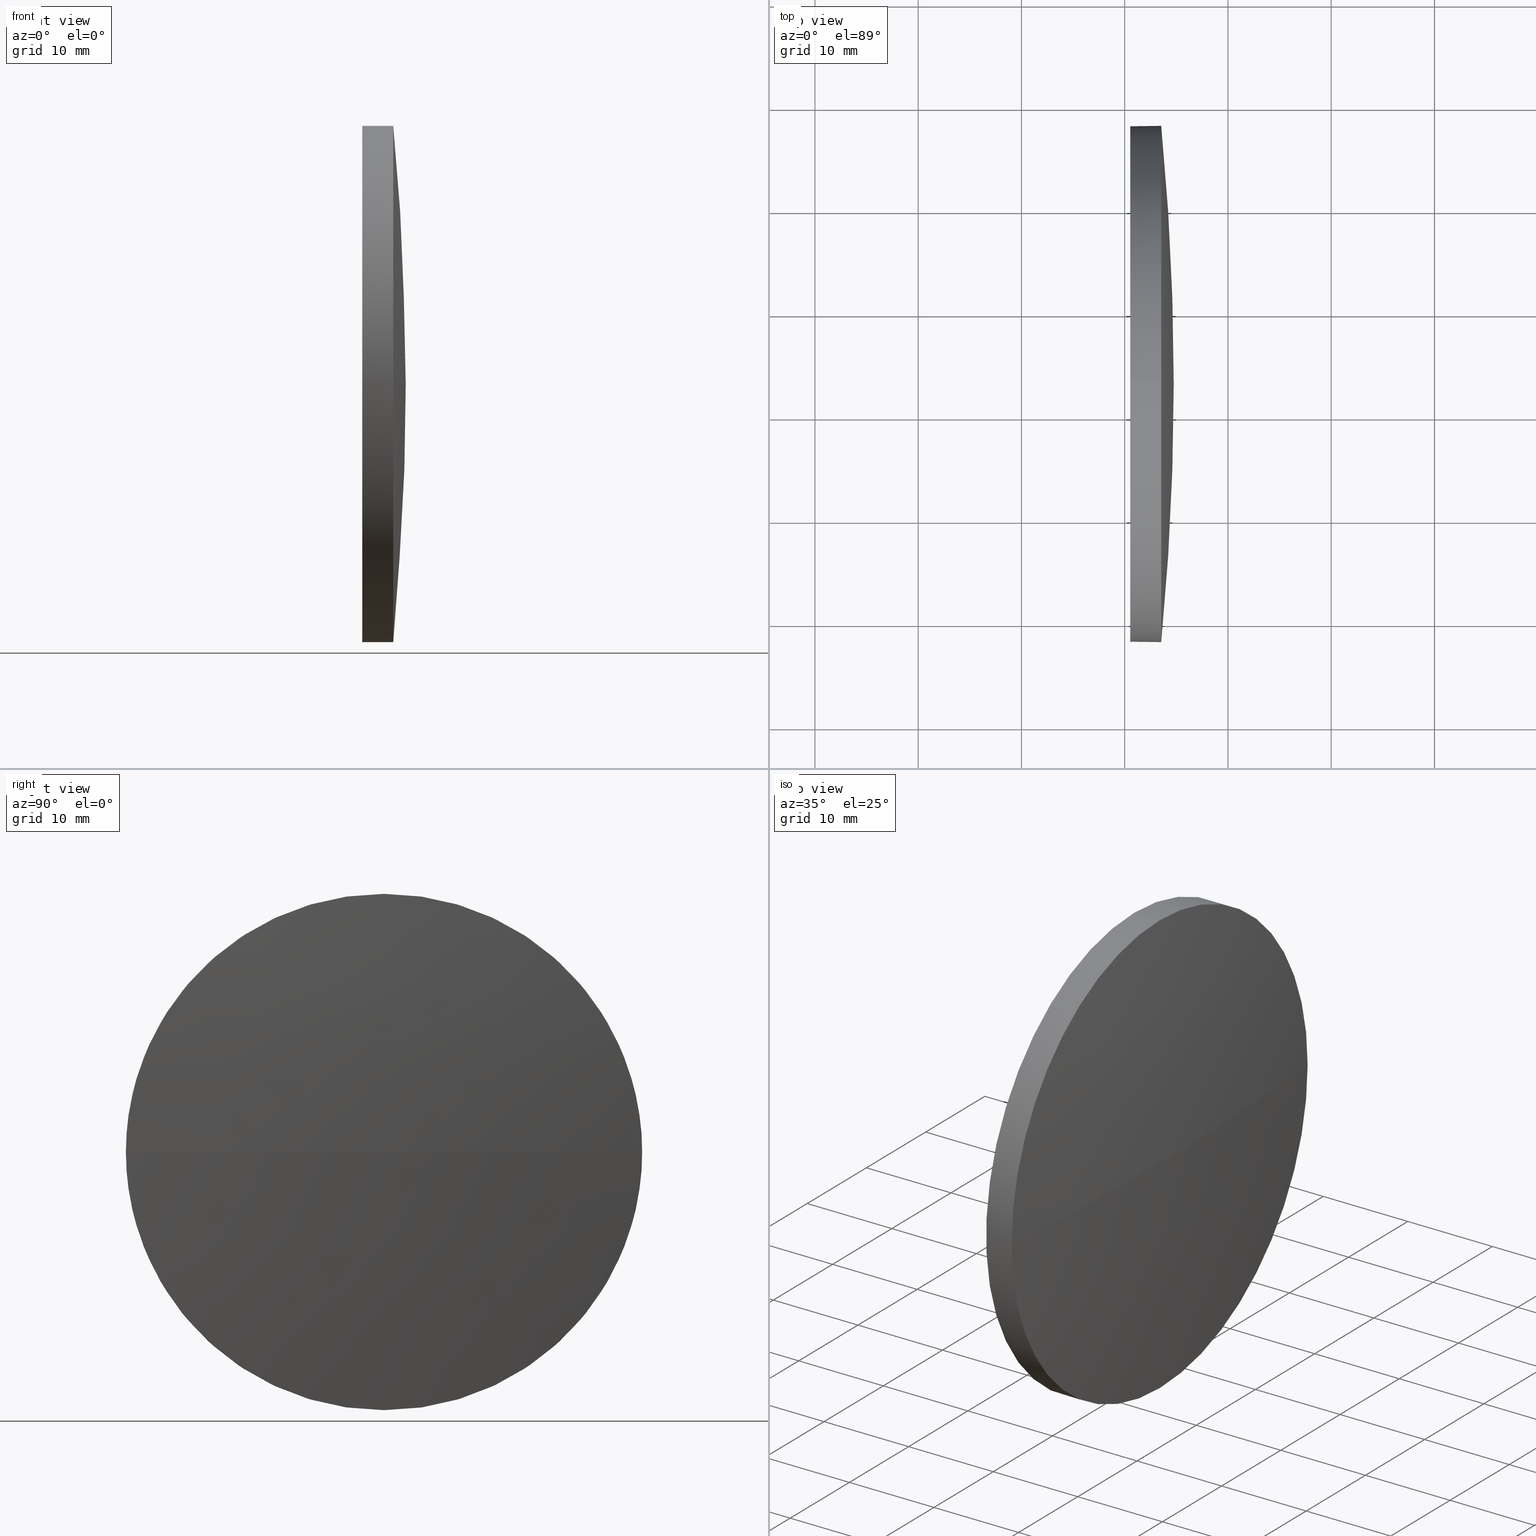
[diagram: canonical four-view strip — front | top / right | iso, engineering-drawing reading convention]
A machine part, canonical four-view strip (front | top / right | iso — engineering-drawing reading convention). The complete STEP part file that produces these views, byte-faithful:
ISO-10303-21;
HEADER;
FILE_DESCRIPTION (( 'STEP AP214' ),
    '1' );
FILE_NAME ('100071.STEP',
    '2019-05-06T03:19:26',
    ( '' ),
    ( '' ),
    'SwSTEP 2.0',
    'SolidWorks 2016',
    '' );
FILE_SCHEMA (( 'AUTOMOTIVE_DESIGN' ));
ENDSEC;

DATA;
#1 = PRESENTATION_STYLE_ASSIGNMENT (( #181 ) ) ;
#2 = VERTEX_POINT ( 'NONE', #138 ) ;
#3 = AXIS2_PLACEMENT_3D ( 'NONE', #9, #176, #63 ) ;
#4 = DIRECTION ( 'NONE',  ( -1.000000000000000000, -0.0000000000000000000, -0.0000000000000000000 ) ) ;
#5 = APPLICATION_CONTEXT ( 'automotive_design' ) ;
#6 = SURFACE_STYLE_FILL_AREA ( #7 ) ;
#7 = FILL_AREA_STYLE ('',( #129 ) ) ;
#8 = CARTESIAN_POINT ( 'NONE',  ( 195.8798775553282500, 83.03950815417367400, 0.0000000000000000000 ) ) ;
#9 = CARTESIAN_POINT ( 'NONE',  ( 453.5393403652467400, 83.03950815417408600, 0.0000000000000000000 ) ) ;
#10 = DIRECTION ( 'NONE',  ( -1.000000000000000000, -0.0000000000000000000, -0.0000000000000000000 ) ) ;
#11 = COLOUR_RGB ( '',1.000000000000000000, 1.000000000000000000, 1.000000000000000000 ) ;
#12 = CARTESIAN_POINT ( 'NONE',  ( 450.5393403652467400, 83.03950815417408600, 0.0000000000000000000 ) ) ;
#13 = DIRECTION ( 'NONE',  ( 0.0000000000000000000, 1.000000000000000000, 0.0000000000000000000 ) ) ;
#14 =( GEOMETRIC_REPRESENTATION_CONTEXT ( 3 ) GLOBAL_UNCERTAINTY_ASSIGNED_CONTEXT ( ( #65 ) ) GLOBAL_UNIT_ASSIGNED_CONTEXT ( ( #99, #69, #145 ) ) REPRESENTATION_CONTEXT ( 'NONE', 'WORKASPACE' ) );
#15 = SURFACE_STYLE_FILL_AREA ( #62 ) ;
#16 = AXIS2_PLACEMENT_3D ( 'NONE', #114, #58, #159 ) ;
#17 = EDGE_CURVE ( 'NONE', #137, #184, #162, .T. ) ;
#18 = ADVANCED_FACE ( 'NONE', ( #154 ), #75, .T. ) ;
#19 = PRODUCT_DEFINITION_CONTEXT ( 'detailed design', #5, 'design' ) ;
#20 = VECTOR ( 'NONE', #24, 1000.000000000000000 ) ;
#21 = VERTEX_POINT ( 'NONE', #29 ) ;
#22 = AXIS2_PLACEMENT_3D ( 'NONE', #47, #44, #68 ) ;
#23 = EDGE_LOOP ( 'NONE', ( #66, #96, #107, #165 ) ) ;
#24 = DIRECTION ( 'NONE',  ( -1.000000000000000000, -0.0000000000000000000, -0.0000000000000000000 ) ) ;
#25 = UNCERTAINTY_MEASURE_WITH_UNIT (LENGTH_MEASURE( 1.000000000000000100E-005 ), #113, 'distance_accuracy_value', 'NONE');
#26 = PRODUCT_DEFINITION ( 'δ֪', '', #150, #19 ) ;
#27 = DIRECTION ( 'NONE',  ( -1.000000000000000000, -0.0000000000000000000, -0.0000000000000000000 ) ) ;
#28 = DIRECTION ( 'NONE',  ( 0.0000000000000000000, 1.000000000000000000, 1.224646799147353200E-016 ) ) ;
#29 = CARTESIAN_POINT ( 'NONE',  ( 450.5393403652467400, 83.03950815417408600, 24.99999999999999300 ) ) ;
#30 = DIRECTION ( 'NONE',  ( 0.0000000000000000000, 1.224646799147353200E-016, -1.000000000000000000 ) ) ;
#31 = DIRECTION ( 'NONE',  ( 0.0000000000000000000, 0.0000000000000000000, 1.000000000000000000 ) ) ;
#32 = EDGE_CURVE ( 'NONE', #34, #123, #36, .T. ) ;
#33 = ORIENTED_EDGE ( 'NONE', *, *, #35, .F. ) ;
#34 = VERTEX_POINT ( 'NONE', #60 ) ;
#35 = EDGE_CURVE ( 'NONE', #34, #21, #153, .T. ) ;
#36 = CIRCLE ( 'NONE', #16, 24.99999999999999300 ) ;
#37 = EDGE_LOOP ( 'NONE', ( #172, #74, #104, #33, #89 ) ) ;
#38 = PRODUCT_DEFINITION_SHAPE ( 'NONE', 'NONE',  #26 ) ;
#39 = CARTESIAN_POINT ( 'NONE',  ( 453.5393403652466900, 108.0395081541740200, 0.0000000000000000000 ) ) ;
#40 = PRODUCT ( '100071', '100071', '', ( #115 ) ) ;
#41 = SURFACE_SIDE_STYLE ('',( #6 ) ) ;
#42 = FACE_OUTER_BOUND ( 'NONE', #149, .T. ) ;
#43 = ORIENTED_EDGE ( 'NONE', *, *, #174, .F. ) ;
#44 = DIRECTION ( 'NONE',  ( 1.000000000000000000, 0.0000000000000000000, 0.0000000000000000000 ) ) ;
#45 = DIRECTION ( 'NONE',  ( 0.0000000000000000000, 0.0000000000000000000, 1.000000000000000000 ) ) ;
#46 = CARTESIAN_POINT ( 'NONE',  ( 450.5393403652467400, 83.03950815417408600, 0.0000000000000000000 ) ) ;
#47 = CARTESIAN_POINT ( 'NONE',  ( 450.5393403652467400, 83.03950815417408600, 0.0000000000000000000 ) ) ;
#48 = CIRCLE ( 'NONE', #106, 258.8694628099185000 ) ;
#49 = AXIS2_PLACEMENT_3D ( 'NONE', #109, #70, #177 ) ;
#50 = VECTOR ( 'NONE', #94, 1000.000000000000000 ) ;
#51 = SURFACE_STYLE_USAGE ( .BOTH. , #41 ) ;
#52 = EDGE_CURVE ( 'NONE', #2, #34, #151, .T. ) ;
#53 = CIRCLE ( 'NONE', #139, 258.8694628099185000 ) ;
#54 = STYLED_ITEM ( 'NONE', ( #1 ), #131 ) ;
#55 = ORIENTED_EDGE ( 'NONE', *, *, #171, .F. ) ;
#56 = SHAPE_DEFINITION_REPRESENTATION ( #38, #168 ) ;
#57 = AXIS2_PLACEMENT_3D ( 'NONE', #158, #27, #31 ) ;
#58 = DIRECTION ( 'NONE',  ( -1.000000000000000000, -0.0000000000000000000, -0.0000000000000000000 ) ) ;
#59 = CIRCLE ( 'NONE', #164, 24.99999999999999300 ) ;
#60 = CARTESIAN_POINT ( 'NONE',  ( 453.5393403652467400, 83.03950815417408600, 24.99999999999999300 ) ) ;
#61 = APPLICATION_PROTOCOL_DEFINITION ( 'draft international standard', 'automotive_design', 1998, #85 ) ;
#62 = FILL_AREA_STYLE ('',( #144 ) ) ;
#63 = DIRECTION ( 'NONE',  ( 0.0000000000000000000, 0.0000000000000000000, 1.000000000000000000 ) ) ;
#64 =( LENGTH_UNIT ( ) NAMED_UNIT ( * ) SI_UNIT ( .MILLI., .METRE. ) );
#65 = UNCERTAINTY_MEASURE_WITH_UNIT (LENGTH_MEASURE( 1.000000000000000100E-005 ), #99, 'distance_accuracy_value', 'NONE');
#66 = ORIENTED_EDGE ( 'NONE', *, *, #152, .F. ) ;
#67 = EDGE_LOOP ( 'NONE', ( #86, #84 ) ) ;
#68 = DIRECTION ( 'NONE',  ( 0.0000000000000000000, 0.0000000000000000000, -1.000000000000000000 ) ) ;
#69 =( NAMED_UNIT ( * ) PLANE_ANGLE_UNIT ( ) SI_UNIT ( $, .RADIAN. ) );
#70 = DIRECTION ( 'NONE',  ( -1.000000000000000000, -0.0000000000000000000, -0.0000000000000000000 ) ) ;
#71 = PRESENTATION_LAYER_ASSIGNMENT (  '', '', ( #54 ) ) ;
#72 = CARTESIAN_POINT ( 'NONE',  ( 195.8798775553282500, 83.03950815417367400, 0.0000000000000000000 ) ) ;
#73 = DIRECTION ( 'NONE',  ( 1.000000000000000000, 0.0000000000000000000, 0.0000000000000000000 ) ) ;
#74 = ORIENTED_EDGE ( 'NONE', *, *, #17, .T. ) ;
#75 = SPHERICAL_SURFACE ( 'NONE', #136, 258.8694628099185000 ) ;
#76 = AXIS2_PLACEMENT_3D ( 'NONE', #72, #146, #13 ) ;
#77 = FACE_OUTER_BOUND ( 'NONE', #67, .T. ) ;
#78 = AXIS2_PLACEMENT_3D ( 'NONE', #143, #126, #163 ) ;
#79 = CLOSED_SHELL ( 'NONE', ( #122, #135, #18, #92, #170 ) ) ;
#80 = CARTESIAN_POINT ( 'NONE',  ( 441.1171009280595300, 83.03950815417408600, -24.99999999999999300 ) ) ;
#81 = DIRECTION ( 'NONE',  ( -1.000000000000000000, -0.0000000000000000000, -0.0000000000000000000 ) ) ;
#82 = CIRCLE ( 'NONE', #3, 24.99999999999999300 ) ;
#83 = CARTESIAN_POINT ( 'NONE',  ( 195.8798775553282500, 83.03950815417367400, 0.0000000000000000000 ) ) ;
#84 = ORIENTED_EDGE ( 'NONE', *, *, #186, .T. ) ;
#85 = APPLICATION_CONTEXT ( 'automotive_design' ) ;
#86 = ORIENTED_EDGE ( 'NONE', *, *, #132, .T. ) ;
#87 = AXIS2_PLACEMENT_3D ( 'NONE', #161, #166, #73 ) ;
#88 = AXIS2_PLACEMENT_3D ( 'NONE', #100, #4, #45 ) ;
#89 = ORIENTED_EDGE ( 'NONE', *, *, #32, .T. ) ;
#90 = MECHANICAL_DESIGN_GEOMETRIC_PRESENTATION_REPRESENTATION (  '', ( #93 ), #14 ) ;
#91 = PRESENTATION_STYLE_ASSIGNMENT (( #51 ) ) ;
#92 = ADVANCED_FACE ( 'NONE', ( #112 ), #133, .T. ) ;
#93 = STYLED_ITEM ( 'NONE', ( #91 ), #168 ) ;
#94 = DIRECTION ( 'NONE',  ( -1.000000000000000000, -0.0000000000000000000, -0.0000000000000000000 ) ) ;
#95 = CARTESIAN_POINT ( 'NONE',  ( 441.1171009280595300, 83.03950815417408600, 24.99999999999999300 ) ) ;
#96 = ORIENTED_EDGE ( 'NONE', *, *, #174, .T. ) ;
#97 = MECHANICAL_DESIGN_GEOMETRIC_PRESENTATION_REPRESENTATION (  '', ( #54 ), #119 ) ;
#98 = VERTEX_POINT ( 'NONE', #179 ) ;
#99 =( LENGTH_UNIT ( ) NAMED_UNIT ( * ) SI_UNIT ( .MILLI., .METRE. ) );
#100 = CARTESIAN_POINT ( 'NONE',  ( 441.1171009280595300, 83.03950815417408600, 0.0000000000000000000 ) ) ;
#101 = DIRECTION ( 'NONE',  ( -0.0000000000000000000, 0.0000000000000000000, 1.000000000000000000 ) ) ;
#102 = CARTESIAN_POINT ( 'NONE',  ( 450.5393403652467400, 83.03950815417408600, -24.99999999999999300 ) ) ;
#103 = COLOUR_RGB ( '',1.000000000000000000, 1.000000000000000000, 1.000000000000000000 ) ;
#104 = ORIENTED_EDGE ( 'NONE', *, *, #132, .F. ) ;
#105 = EDGE_LOOP ( 'NONE', ( #121, #120, #127, #178, #108 ) ) ;
#106 = AXIS2_PLACEMENT_3D ( 'NONE', #142, #30, #28 ) ;
#107 = ORIENTED_EDGE ( 'NONE', *, *, #32, .F. ) ;
#108 = ORIENTED_EDGE ( 'NONE', *, *, #186, .F. ) ;
#109 = CARTESIAN_POINT ( 'NONE',  ( 453.5393403652467400, 83.03950815417408600, 0.0000000000000000000 ) ) ;
#110 = PRODUCT_RELATED_PRODUCT_CATEGORY ( 'part', '', ( #40 ) ) ;
#111 = CARTESIAN_POINT ( 'NONE',  ( 453.5393403652467400, 83.03950815417408600, -24.99999999999999300 ) ) ;
#112 = FACE_OUTER_BOUND ( 'NONE', #105, .T. ) ;
#113 =( LENGTH_UNIT ( ) NAMED_UNIT ( * ) SI_UNIT ( .MILLI., .METRE. ) );
#114 = CARTESIAN_POINT ( 'NONE',  ( 453.5393403652467400, 83.03950815417408600, 0.0000000000000000000 ) ) ;
#115 = PRODUCT_CONTEXT ( 'NONE', #85, 'mechanical' ) ;
#116 = DIRECTION ( 'NONE',  ( -0.0000000000000000000, 0.0000000000000000000, -1.000000000000000000 ) ) ;
#117 =( NAMED_UNIT ( * ) PLANE_ANGLE_UNIT ( ) SI_UNIT ( $, .RADIAN. ) );
#118 =( NAMED_UNIT ( * ) SI_UNIT ( $, .STERADIAN. ) SOLID_ANGLE_UNIT ( ) );
#119 =( GEOMETRIC_REPRESENTATION_CONTEXT ( 3 ) GLOBAL_UNCERTAINTY_ASSIGNED_CONTEXT ( ( #185 ) ) GLOBAL_UNIT_ASSIGNED_CONTEXT ( ( #64, #130, #118 ) ) REPRESENTATION_CONTEXT ( 'NONE', 'WORKASPACE' ) );
#120 = ORIENTED_EDGE ( 'NONE', *, *, #140, .T. ) ;
#121 = ORIENTED_EDGE ( 'NONE', *, *, #17, .F. ) ;
#122 = ADVANCED_FACE ( 'NONE', ( #183 ), #124, .T. ) ;
#123 = VERTEX_POINT ( 'NONE', #39 ) ;
#124 = CYLINDRICAL_SURFACE ( 'NONE', #88, 24.99999999999999300 ) ;
#125 =( GEOMETRIC_REPRESENTATION_CONTEXT ( 3 ) GLOBAL_UNCERTAINTY_ASSIGNED_CONTEXT ( ( #25 ) ) GLOBAL_UNIT_ASSIGNED_CONTEXT ( ( #113, #117, #148 ) ) REPRESENTATION_CONTEXT ( 'NONE', 'WORKASPACE' ) );
#126 = DIRECTION ( 'NONE',  ( -1.000000000000000000, -0.0000000000000000000, -0.0000000000000000000 ) ) ;
#127 = ORIENTED_EDGE ( 'NONE', *, *, #52, .T. ) ;
#128 = DIRECTION ( 'NONE',  ( 0.0000000000000000000, 0.0000000000000000000, 1.000000000000000000 ) ) ;
#129 = FILL_AREA_STYLE_COLOUR ( '', #103 ) ;
#130 =( NAMED_UNIT ( * ) PLANE_ANGLE_UNIT ( ) SI_UNIT ( $, .RADIAN. ) );
#131 = MANIFOLD_SOLID_BREP ( '��ת1', #79 ) ;
#132 = EDGE_CURVE ( 'NONE', #21, #184, #134, .T. ) ;
#133 = CYLINDRICAL_SURFACE ( 'NONE', #78, 24.99999999999999300 ) ;
#134 = CIRCLE ( 'NONE', #155, 24.99999999999999300 ) ;
#135 = ADVANCED_FACE ( 'NONE', ( #42 ), #167, .T. ) ;
#136 = AXIS2_PLACEMENT_3D ( 'NONE', #8, #116, #141 ) ;
#137 = VERTEX_POINT ( 'NONE', #111 ) ;
#138 = CARTESIAN_POINT ( 'NONE',  ( 453.5393403652466900, 58.03950815417373100, -3.061616997868374800E-015 ) ) ;
#139 = AXIS2_PLACEMENT_3D ( 'NONE', #83, #101, #160 ) ;
#140 = EDGE_CURVE ( 'NONE', #137, #2, #156, .T. ) ;
#141 = DIRECTION ( 'NONE',  ( 0.0000000000000000000, 1.000000000000000000, 0.0000000000000000000 ) ) ;
#142 = CARTESIAN_POINT ( 'NONE',  ( 195.8798775553282500, 83.03950815417367400, 0.0000000000000000000 ) ) ;
#143 = CARTESIAN_POINT ( 'NONE',  ( 441.1171009280595300, 83.03950815417408600, 0.0000000000000000000 ) ) ;
#144 = FILL_AREA_STYLE_COLOUR ( '', #11 ) ;
#145 =( NAMED_UNIT ( * ) SI_UNIT ( $, .STERADIAN. ) SOLID_ANGLE_UNIT ( ) );
#146 = DIRECTION ( 'NONE',  ( -0.0000000000000000000, 0.0000000000000000000, -1.000000000000000000 ) ) ;
#147 = ORIENTED_EDGE ( 'NONE', *, *, #140, .F. ) ;
#148 =( NAMED_UNIT ( * ) SI_UNIT ( $, .STERADIAN. ) SOLID_ANGLE_UNIT ( ) );
#149 = EDGE_LOOP ( 'NONE', ( #43, #173, #147, #55 ) ) ;
#150 = PRODUCT_DEFINITION_FORMATION_WITH_SPECIFIED_SOURCE ( '�κ�', '', #40, .NOT_KNOWN. ) ;
#151 = CIRCLE ( 'NONE', #49, 24.99999999999999300 ) ;
#152 = EDGE_CURVE ( 'NONE', #98, #2, #48, .T. ) ;
#153 = LINE ( 'NONE', #95, #20 ) ;
#154 = FACE_OUTER_BOUND ( 'NONE', #23, .T. ) ;
#155 = AXIS2_PLACEMENT_3D ( 'NONE', #46, #10, #182 ) ;
#156 = CIRCLE ( 'NONE', #57, 24.99999999999999300 ) ;
#157 = APPLICATION_PROTOCOL_DEFINITION ( 'draft international standard', 'automotive_design', 1998, #5 ) ;
#158 = CARTESIAN_POINT ( 'NONE',  ( 453.5393403652467400, 83.03950815417408600, 0.0000000000000000000 ) ) ;
#159 = DIRECTION ( 'NONE',  ( 0.0000000000000000000, 0.0000000000000000000, 1.000000000000000000 ) ) ;
#160 = DIRECTION ( 'NONE',  ( 1.000000000000000000, 0.0000000000000000000, 0.0000000000000000000 ) ) ;
#161 = CARTESIAN_POINT ( 'NONE',  ( 0.0000000000000000000, 0.0000000000000000000, 0.0000000000000000000 ) ) ;
#162 = LINE ( 'NONE', #80, #50 ) ;
#163 = DIRECTION ( 'NONE',  ( 0.0000000000000000000, 0.0000000000000000000, 1.000000000000000000 ) ) ;
#164 = AXIS2_PLACEMENT_3D ( 'NONE', #12, #81, #128 ) ;
#165 = ORIENTED_EDGE ( 'NONE', *, *, #52, .F. ) ;
#166 = DIRECTION ( 'NONE',  ( 0.0000000000000000000, 0.0000000000000000000, 1.000000000000000000 ) ) ;
#167 = SPHERICAL_SURFACE ( 'NONE', #76, 258.8694628099185000 ) ;
#168 = ADVANCED_BREP_SHAPE_REPRESENTATION ( '100071', ( #131, #87 ), #125 ) ;
#169 = PRESENTATION_LAYER_ASSIGNMENT (  '', '', ( #93 ) ) ;
#170 = ADVANCED_FACE ( 'NONE', ( #77 ), #180, .F. ) ;
#171 = EDGE_CURVE ( 'NONE', #123, #137, #82, .T. ) ;
#172 = ORIENTED_EDGE ( 'NONE', *, *, #171, .T. ) ;
#173 = ORIENTED_EDGE ( 'NONE', *, *, #152, .T. ) ;
#174 = EDGE_CURVE ( 'NONE', #98, #123, #53, .T. ) ;
#175 = SURFACE_SIDE_STYLE ('',( #15 ) ) ;
#176 = DIRECTION ( 'NONE',  ( -1.000000000000000000, -0.0000000000000000000, -0.0000000000000000000 ) ) ;
#177 = DIRECTION ( 'NONE',  ( 0.0000000000000000000, 0.0000000000000000000, 1.000000000000000000 ) ) ;
#178 = ORIENTED_EDGE ( 'NONE', *, *, #35, .T. ) ;
#179 = CARTESIAN_POINT ( 'NONE',  ( 454.7493403652467200, 83.03950815417368900, 0.0000000000000000000 ) ) ;
#180 = PLANE ( 'NONE',  #22 ) ;
#181 = SURFACE_STYLE_USAGE ( .BOTH. , #175 ) ;
#182 = DIRECTION ( 'NONE',  ( 0.0000000000000000000, 0.0000000000000000000, 1.000000000000000000 ) ) ;
#183 = FACE_OUTER_BOUND ( 'NONE', #37, .T. ) ;
#184 = VERTEX_POINT ( 'NONE', #102 ) ;
#185 = UNCERTAINTY_MEASURE_WITH_UNIT (LENGTH_MEASURE( 1.000000000000000100E-005 ), #64, 'distance_accuracy_value', 'NONE');
#186 = EDGE_CURVE ( 'NONE', #184, #21, #59, .T. ) ;
ENDSEC;
END-ISO-10303-21;
